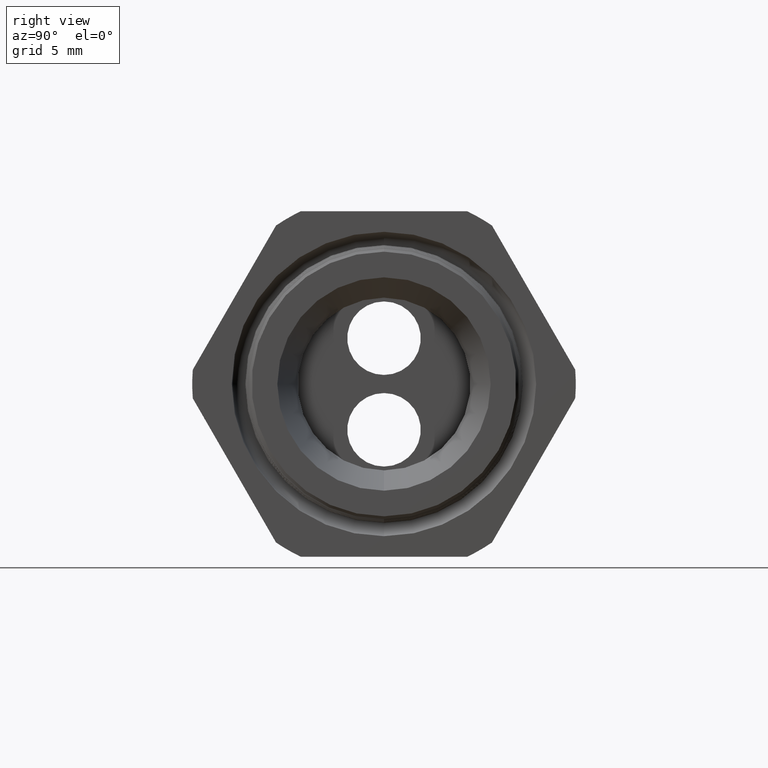
[diagram: clean part render]
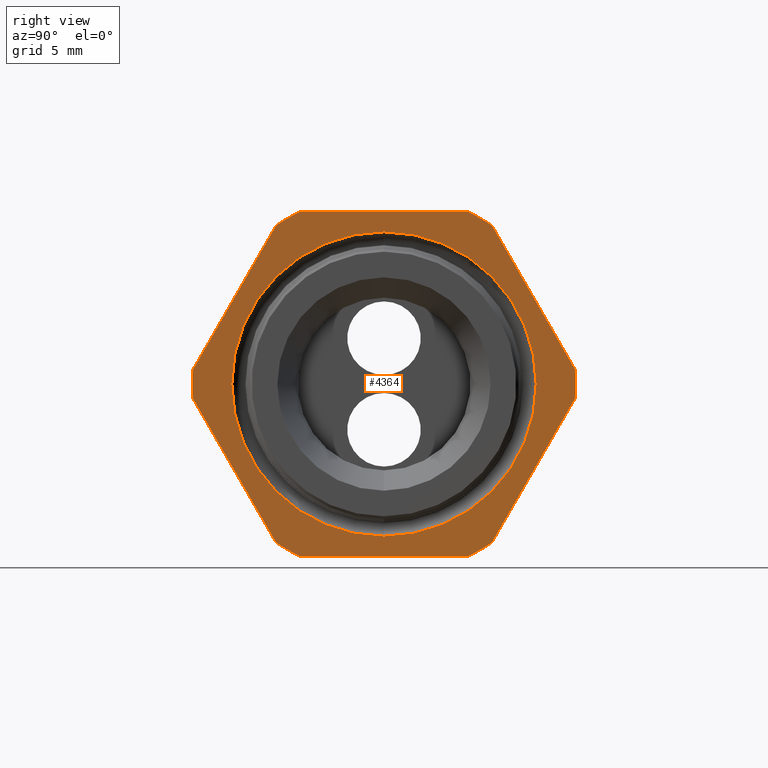
[diagram: same view with one face highlighted and labeled with its STEP entity id]
A machine part, right view. The second image highlights one B-rep face of the part: STEP entity #4364.
In plain terms, the highlighted planar face has unit normal (1, 0, 0).
Its self-contained STEP definition (entity closure, byte-faithful):
#248 = VERTEX_POINT ( 'NONE', #1586 ) ;
#460 = EDGE_CURVE ( 'NONE', #476, #248, #1892, .T. ) ;
#476 = VERTEX_POINT ( 'NONE', #1932 ) ;
#1586 = CARTESIAN_POINT ( 'NONE',  ( -0.3100000000000000000, 0.0000000000000000000, -0.4140490524579807900 ) ) ;
#1889 = DIRECTION ( 'NONE',  ( 0.0000000000000000000, 0.0000000000000000000, -1.000000000000000000 ) ) ;
#1890 = DIRECTION ( 'NONE',  ( 1.000000000000000000, 0.0000000000000000000, 0.0000000000000000000 ) ) ;
#1891 = AXIS2_PLACEMENT_3D ( 'NONE', #1896, #1890, #1889 ) ;
#1892 = CIRCLE ( 'NONE', #1891, 0.4140490524579808500 ) ;
#1896 = CARTESIAN_POINT ( 'NONE',  ( -0.3100000000000000000, 0.0000000000000000000, 0.0000000000000000000 ) ) ;
#1932 = CARTESIAN_POINT ( 'NONE',  ( -0.3100000000000000000, 5.070638467826607500E-017, 0.4140490524579807900 ) ) ;
#3247 = DIRECTION ( 'NONE',  ( 0.0000000000000000000, 0.0000000000000000000, -1.000000000000000000 ) ) ;
#3248 = DIRECTION ( 'NONE',  ( 1.000000000000000000, 0.0000000000000000000, 0.0000000000000000000 ) ) ;
#3249 = CARTESIAN_POINT ( 'NONE',  ( -0.3100000000000000000, 0.9399999999999999500, 0.0000000000000000000 ) ) ;
#3250 = AXIS2_PLACEMENT_3D ( 'NONE', #3249, #3248, #3247 ) ;
#3251 = PLANE ( 'NONE',  #3250 ) ;
#3252 = FACE_OUTER_BOUND ( 'NONE', #4790, .T. ) ;
#3253 = FACE_BOUND ( 'NONE', #4347, .T. ) ;
#3264 = DIRECTION ( 'NONE',  ( 0.0000000000000000000, 0.0000000000000000000, -1.000000000000000000 ) ) ;
#3265 = DIRECTION ( 'NONE',  ( 1.000000000000000000, 0.0000000000000000000, 0.0000000000000000000 ) ) ;
#3266 = CARTESIAN_POINT ( 'NONE',  ( -0.3100000000000000000, 0.0000000000000000000, 0.0000000000000000000 ) ) ;
#3267 = AXIS2_PLACEMENT_3D ( 'NONE', #3266, #3265, #3264 ) ;
#3268 = CIRCLE ( 'NONE', #3267, 0.4140490524579808500 ) ;
#3285 = DIRECTION ( 'NONE',  ( 0.0000000000000000000, 0.0000000000000000000, -1.000000000000000000 ) ) ;
#3286 = DIRECTION ( 'NONE',  ( 1.000000000000000000, 0.0000000000000000000, 0.0000000000000000000 ) ) ;
#3287 = CARTESIAN_POINT ( 'NONE',  ( -0.3100000000000000000, 0.0000000000000000000, 0.0000000000000000000 ) ) ;
#3288 = AXIS2_PLACEMENT_3D ( 'NONE', #3287, #3286, #3285 ) ;
#3289 = CIRCLE ( 'NONE', #3288, 0.5217000000000000500 ) ;
#3290 = CARTESIAN_POINT ( 'NONE',  ( -0.3100000000000000000, 0.5202473208008776600, 0.03890520787129531800 ) ) ;
#3291 = CARTESIAN_POINT ( 'NONE',  ( -0.3100000000000000000, 0.2938165587564947600, 0.4310947921287048800 ) ) ;
#3292 = DIRECTION ( 'NONE',  ( 0.0000000000000000000, -0.5000000000000001100, 0.8660254037844384900 ) ) ;
#3293 = VECTOR ( 'NONE', #3292, 39.37007874015748900 ) ;
#3294 = CARTESIAN_POINT ( 'NONE',  ( -0.3100000000000000000, 0.6420319397786862200, -0.1720319397786861700 ) ) ;
#3295 = LINE ( 'NONE', #3294, #3293 ) ;
#3296 = DIRECTION ( 'NONE',  ( 0.0000000000000000000, 0.0000000000000000000, -1.000000000000000000 ) ) ;
#3297 = DIRECTION ( 'NONE',  ( 1.000000000000000000, 0.0000000000000000000, 0.0000000000000000000 ) ) ;
#3298 = CARTESIAN_POINT ( 'NONE',  ( -0.3100000000000000000, 0.0000000000000000000, 0.0000000000000000000 ) ) ;
#3299 = AXIS2_PLACEMENT_3D ( 'NONE', #3298, #3297, #3296 ) ;
#3300 = CIRCLE ( 'NONE', #3299, 0.5217000000000000500 ) ;
#3301 = CARTESIAN_POINT ( 'NONE',  ( -0.3100000000000000000, 0.2264307620443832800, 0.4699999999999999200 ) ) ;
#3317 = CARTESIAN_POINT ( 'NONE',  ( -0.3100000000000000000, -0.2264307620443830900, -0.4700000000000000300 ) ) ;
#3318 = CARTESIAN_POINT ( 'NONE',  ( -0.3100000000000000000, 0.2264307620443831200, -0.4700000000000000300 ) ) ;
#3345 = CARTESIAN_POINT ( 'NONE',  ( -0.3100000000000000000, -0.2938165587564942600, -0.4310947921287053300 ) ) ;
#3346 = DIRECTION ( 'NONE',  ( 0.0000000000000000000, 0.0000000000000000000, -1.000000000000000000 ) ) ;
#3347 = DIRECTION ( 'NONE',  ( 1.000000000000000000, 0.0000000000000000000, 0.0000000000000000000 ) ) ;
#3348 = CARTESIAN_POINT ( 'NONE',  ( -0.3100000000000000000, 0.0000000000000000000, 0.0000000000000000000 ) ) ;
#3349 = AXIS2_PLACEMENT_3D ( 'NONE', #3348, #3347, #3346 ) ;
#3350 = CIRCLE ( 'NONE', #3349, 0.5217000000000000500 ) ;
#3351 = DIRECTION ( 'NONE',  ( 0.0000000000000000000, 1.000000000000000000, 0.0000000000000000000 ) ) ;
#3352 = VECTOR ( 'NONE', #3351, 39.37007874015748100 ) ;
#3353 = CARTESIAN_POINT ( 'NONE',  ( -0.3100000000000000000, 0.9399999999999999500, -0.4700000000000000300 ) ) ;
#3354 = LINE ( 'NONE', #3353, #3352 ) ;
#3355 = DIRECTION ( 'NONE',  ( 0.0000000000000000000, 0.0000000000000000000, -1.000000000000000000 ) ) ;
#3356 = DIRECTION ( 'NONE',  ( 1.000000000000000000, 0.0000000000000000000, 0.0000000000000000000 ) ) ;
#3357 = CARTESIAN_POINT ( 'NONE',  ( -0.3100000000000000000, 0.0000000000000000000, 0.0000000000000000000 ) ) ;
#3358 = AXIS2_PLACEMENT_3D ( 'NONE', #3357, #3356, #3355 ) ;
#3359 = CIRCLE ( 'NONE', #3358, 0.5217000000000000500 ) ;
#4088 = DIRECTION ( 'NONE',  ( 0.0000000000000000000, 0.5000000000000001100, -0.8660254037844384900 ) ) ;
#4089 = VECTOR ( 'NONE', #4088, 39.37007874015748900 ) ;
#4090 = CARTESIAN_POINT ( 'NONE',  ( -0.3100000000000000000, -0.1720319397786861700, -0.6420319397786864400 ) ) ;
#4091 = LINE ( 'NONE', #4090, #4089 ) ;
#4146 = LINE ( 'NONE', #4205, #4204 ) ;
#4153 = CARTESIAN_POINT ( 'NONE',  ( -0.3100000000000000000, -0.5202473208008777700, 0.03890520787129464500 ) ) ;
#4154 = CARTESIAN_POINT ( 'NONE',  ( -0.3100000000000000000, -0.5202473208008777700, -0.03890520787129495000 ) ) ;
#4155 = DIRECTION ( 'NONE',  ( 0.0000000000000000000, 0.0000000000000000000, -1.000000000000000000 ) ) ;
#4156 = DIRECTION ( 'NONE',  ( 1.000000000000000000, 0.0000000000000000000, 0.0000000000000000000 ) ) ;
#4157 = CARTESIAN_POINT ( 'NONE',  ( -0.3100000000000000000, 0.0000000000000000000, 0.0000000000000000000 ) ) ;
#4158 = AXIS2_PLACEMENT_3D ( 'NONE', #4157, #4156, #4155 ) ;
#4159 = CIRCLE ( 'NONE', #4158, 0.5217000000000000500 ) ;
#4160 = CARTESIAN_POINT ( 'NONE',  ( -0.3100000000000000000, -0.2938165587564945900, 0.4310947921287050500 ) ) ;
#4183 = DIRECTION ( 'NONE',  ( 0.0000000000000000000, -1.000000000000000000, 0.0000000000000000000 ) ) ;
#4184 = VECTOR ( 'NONE', #4183, 39.37007874015748100 ) ;
#4185 = CARTESIAN_POINT ( 'NONE',  ( -0.3100000000000000000, 0.9399999999999999500, 0.4699999999999999200 ) ) ;
#4186 = LINE ( 'NONE', #4185, #4184 ) ;
#4187 = CARTESIAN_POINT ( 'NONE',  ( -0.3100000000000000000, -0.2264307620443835300, 0.4699999999999997000 ) ) ;
#4188 = DIRECTION ( 'NONE',  ( 0.0000000000000000000, 0.0000000000000000000, -1.000000000000000000 ) ) ;
#4189 = DIRECTION ( 'NONE',  ( 1.000000000000000000, 0.0000000000000000000, 0.0000000000000000000 ) ) ;
#4190 = CARTESIAN_POINT ( 'NONE',  ( -0.3100000000000000000, 0.0000000000000000000, 0.0000000000000000000 ) ) ;
#4191 = AXIS2_PLACEMENT_3D ( 'NONE', #4190, #4189, #4188 ) ;
#4192 = CIRCLE ( 'NONE', #4191, 0.5217000000000000500 ) ;
#4193 = DIRECTION ( 'NONE',  ( 0.0000000000000000000, 0.4999999999999998300, 0.8660254037844388200 ) ) ;
#4194 = VECTOR ( 'NONE', #4193, 39.37007874015748100 ) ;
#4195 = CARTESIAN_POINT ( 'NONE',  ( -0.3100000000000000000, 0.6420319397786861100, 0.1720319397786860800 ) ) ;
#4196 = LINE ( 'NONE', #4195, #4194 ) ;
#4197 = CARTESIAN_POINT ( 'NONE',  ( -0.3100000000000000000, 0.5202473208008777700, -0.03890520787129494300 ) ) ;
#4198 = CARTESIAN_POINT ( 'NONE',  ( -0.3100000000000000000, 0.2938165587564948700, -0.4310947921287048800 ) ) ;
#4203 = DIRECTION ( 'NONE',  ( 0.0000000000000000000, -0.4999999999999998300, -0.8660254037844388200 ) ) ;
#4204 = VECTOR ( 'NONE', #4203, 39.37007874015748100 ) ;
#4205 = CARTESIAN_POINT ( 'NONE',  ( -0.3100000000000000000, -0.1720319397786864200, 0.6420319397786858900 ) ) ;
#4347 = EDGE_LOOP ( 'NONE', ( #4358, #4792 ) ) ;
#4358 = ORIENTED_EDGE ( 'NONE', *, *, #4359, .F. ) ;
#4359 = EDGE_CURVE ( 'NONE', #248, #476, #3268, .T. ) ;
#4364 = ADVANCED_FACE ( 'NONE', ( #3253, #3252 ), #3251, .T. ) ;
#4372 = VERTEX_POINT ( 'NONE', #3301 ) ;
#4373 = EDGE_CURVE ( 'NONE', #4377, #4372, #3300, .T. ) ;
#4374 = ORIENTED_EDGE ( 'NONE', *, *, #4373, .T. ) ;
#4375 = EDGE_CURVE ( 'NONE', #4378, #4377, #3295, .T. ) ;
#4376 = ORIENTED_EDGE ( 'NONE', *, *, #4375, .T. ) ;
#4377 = VERTEX_POINT ( 'NONE', #3291 ) ;
#4378 = VERTEX_POINT ( 'NONE', #3290 ) ;
#4379 = EDGE_CURVE ( 'NONE', #4845, #4378, #3289, .T. ) ;
#4394 = ORIENTED_EDGE ( 'NONE', *, *, #4379, .T. ) ;
#4401 = ORIENTED_EDGE ( 'NONE', *, *, #4413, .T. ) ;
#4402 = ORIENTED_EDGE ( 'NONE', *, *, #4849, .T. ) ;
#4403 = VERTEX_POINT ( 'NONE', #3318 ) ;
#4404 = VERTEX_POINT ( 'NONE', #3317 ) ;
#4413 = EDGE_CURVE ( 'NONE', #4403, #4844, #3359, .T. ) ;
#4414 = ORIENTED_EDGE ( 'NONE', *, *, #4415, .T. ) ;
#4415 = EDGE_CURVE ( 'NONE', #4404, #4403, #3354, .T. ) ;
#4416 = EDGE_CURVE ( 'NONE', #4418, #4404, #3350, .T. ) ;
#4418 = VERTEX_POINT ( 'NONE', #3345 ) ;
#4419 = ORIENTED_EDGE ( 'NONE', *, *, #4416, .T. ) ;
#4790 = EDGE_LOOP ( 'NONE', ( #4791, #4394, #4376, #4374, #4402, #4829, #4834, #4831, #4807, #4419, #4414, #4401 ) ) ;
#4791 = ORIENTED_EDGE ( 'NONE', *, *, #4846, .T. ) ;
#4792 = ORIENTED_EDGE ( 'NONE', *, *, #460, .F. ) ;
#4794 = EDGE_CURVE ( 'NONE', #4832, #4418, #4091, .T. ) ;
#4807 = ORIENTED_EDGE ( 'NONE', *, *, #4794, .T. ) ;
#4823 = VERTEX_POINT ( 'NONE', #4160 ) ;
#4828 = EDGE_CURVE ( 'NONE', #4833, #4832, #4159, .T. ) ;
#4829 = ORIENTED_EDGE ( 'NONE', *, *, #4847, .T. ) ;
#4831 = ORIENTED_EDGE ( 'NONE', *, *, #4828, .T. ) ;
#4832 = VERTEX_POINT ( 'NONE', #4154 ) ;
#4833 = VERTEX_POINT ( 'NONE', #4153 ) ;
#4834 = ORIENTED_EDGE ( 'NONE', *, *, #4840, .T. ) ;
#4840 = EDGE_CURVE ( 'NONE', #4823, #4833, #4146, .T. ) ;
#4844 = VERTEX_POINT ( 'NONE', #4198 ) ;
#4845 = VERTEX_POINT ( 'NONE', #4197 ) ;
#4846 = EDGE_CURVE ( 'NONE', #4844, #4845, #4196, .T. ) ;
#4847 = EDGE_CURVE ( 'NONE', #4848, #4823, #4192, .T. ) ;
#4848 = VERTEX_POINT ( 'NONE', #4187 ) ;
#4849 = EDGE_CURVE ( 'NONE', #4372, #4848, #4186, .T. ) ;